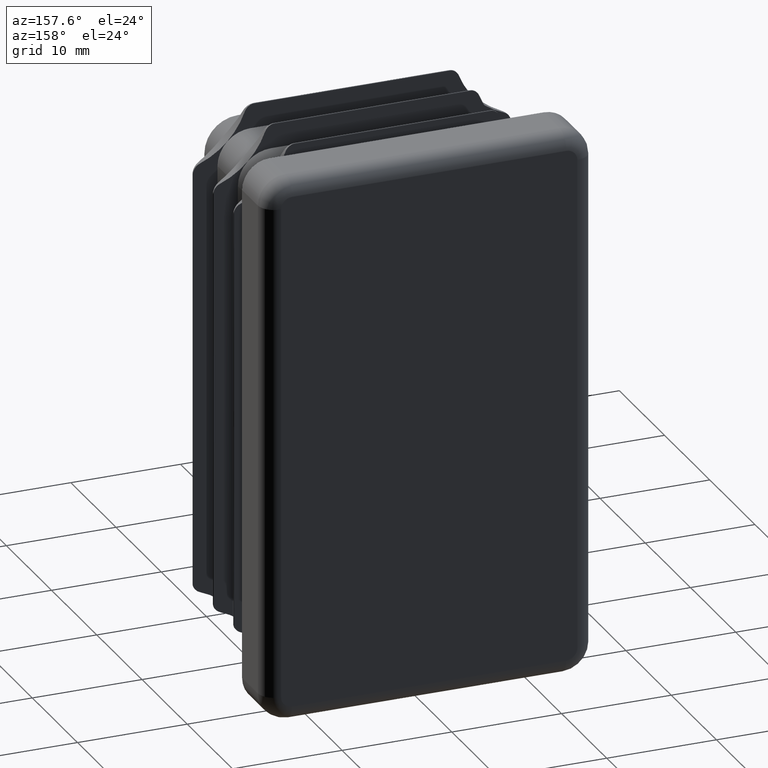
[diagram: clean part render]
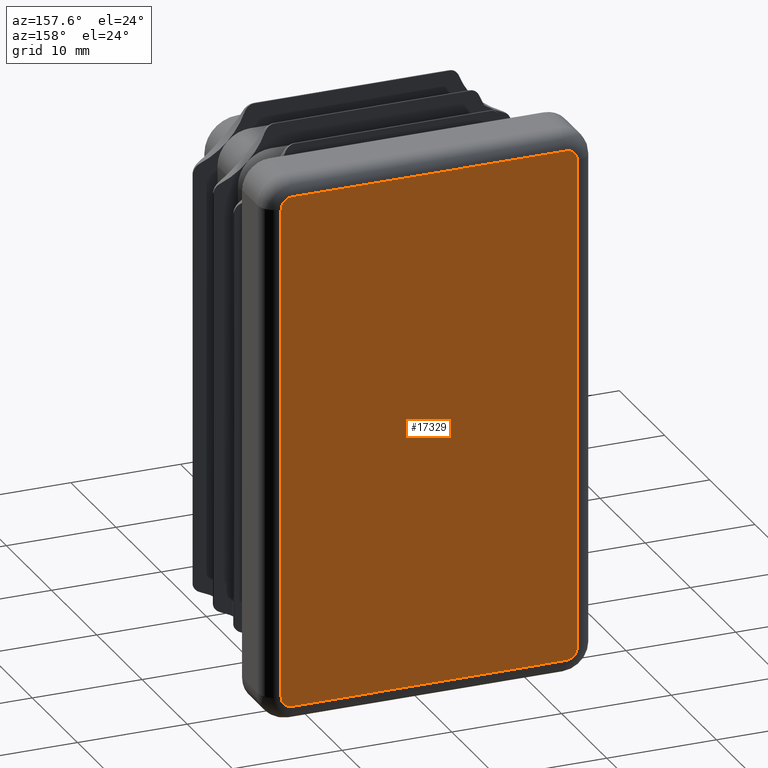
[diagram: same view with one face highlighted and labeled with its STEP entity id]
A machine part, auxiliary view. The second image highlights one B-rep face of the part: STEP entity #17329.
In plain terms, the highlighted planar face has unit normal (0, 1, 0).
Its self-contained STEP definition (entity closure, byte-faithful):
#63 = VERTEX_POINT ( 'NONE', #15449 ) ;
#498 = VERTEX_POINT ( 'NONE', #6552 ) ;
#795 = AXIS2_PLACEMENT_3D ( 'NONE', #4868, #18777, #9548 ) ;
#868 = CARTESIAN_POINT ( 'NONE',  ( 12.49999999999999822, 5.000000000000000000, -23.50000000000000355 ) ) ;
#976 = AXIS2_PLACEMENT_3D ( 'NONE', #13393, #4179, #7309 ) ;
#1946 = AXIS2_PLACEMENT_3D ( 'NONE', #16580, #18252, #12031 ) ;
#1960 = DIRECTION ( 'NONE',  ( 0.000000000000000000, 1.000000000000000000, 0.000000000000000000 ) ) ;
#2048 = DIRECTION ( 'NONE',  ( 0.000000000000000000, 0.000000000000000000, 1.000000000000000000 ) ) ;
#2829 = CIRCLE ( 'NONE', #12670, 1.000000000000000888 ) ;
#2890 = LINE ( 'NONE', #14258, #12329 ) ;
#3400 = CARTESIAN_POINT ( 'NONE',  ( 12.49999999999999822, 5.000000000000000000, -22.50000000000000355 ) ) ;
#3445 = PLANE ( 'NONE',  #6044 ) ;
#3987 = VECTOR ( 'NONE', #6668, 1000.000000000000000 ) ;
#4179 = DIRECTION ( 'NONE',  ( 0.000000000000000000, 1.000000000000000000, 0.000000000000000000 ) ) ;
#4342 = VERTEX_POINT ( 'NONE', #17839 ) ;
#4503 = VERTEX_POINT ( 'NONE', #17084 ) ;
#4695 = EDGE_CURVE ( 'NONE', #498, #63, #8121, .T. ) ;
#4868 = CARTESIAN_POINT ( 'NONE',  ( 12.50000000000000533, 5.000000000000000000, 22.50000000000000000 ) ) ;
#5216 = CIRCLE ( 'NONE', #1946, 1.000000000000000888 ) ;
#6044 = AXIS2_PLACEMENT_3D ( 'NONE', #15983, #1960, #17513 ) ;
#6552 = CARTESIAN_POINT ( 'NONE',  ( 13.50000000000000888, 5.000000000000000000, 22.50000000000000000 ) ) ;
#6668 = DIRECTION ( 'NONE',  ( -1.040834085586084257E-16, 0.000000000000000000, -1.000000000000000000 ) ) ;
#7235 = ORIENTED_EDGE ( 'NONE', *, *, #12396, .T. ) ;
#7309 = DIRECTION ( 'NONE',  ( 0.000000000000000000, 0.000000000000000000, 1.000000000000000000 ) ) ;
#7334 = ORIENTED_EDGE ( 'NONE', *, *, #10008, .T. ) ;
#7421 = DIRECTION ( 'NONE',  ( -1.000000000000000000, 0.000000000000000000, 0.000000000000000000 ) ) ;
#7503 = EDGE_LOOP ( 'NONE', ( #19153, #10498, #11410, #7334, #13663, #18885, #19144, #7235 ) ) ;
#7736 = VERTEX_POINT ( 'NONE', #10553 ) ;
#8099 = CARTESIAN_POINT ( 'NONE',  ( 13.50000000000000355, 5.000000000000000000, -22.50000000000000355 ) ) ;
#8121 = LINE ( 'NONE', #8099, #3987 ) ;
#9548 = DIRECTION ( 'NONE',  ( 0.000000000000000000, 0.000000000000000000, 1.000000000000000000 ) ) ;
#10008 = EDGE_CURVE ( 'NONE', #63, #13852, #2829, .T. ) ;
#10411 = VERTEX_POINT ( 'NONE', #12792 ) ;
#10498 = ORIENTED_EDGE ( 'NONE', *, *, #10845, .T. ) ;
#10553 = CARTESIAN_POINT ( 'NONE',  ( -13.49999999999999289, 5.000000000000000000, 22.50000000000000355 ) ) ;
#10845 = EDGE_CURVE ( 'NONE', #4503, #498, #13982, .T. ) ;
#11410 = ORIENTED_EDGE ( 'NONE', *, *, #4695, .T. ) ;
#11416 = CARTESIAN_POINT ( 'NONE',  ( -13.49999999999999822, 5.000000000000000000, -22.50000000000000355 ) ) ;
#12031 = DIRECTION ( 'NONE',  ( 0.000000000000000000, 0.000000000000000000, 1.000000000000000000 ) ) ;
#12295 = DIRECTION ( 'NONE',  ( 1.040834085586084257E-16, -0.000000000000000000, 1.000000000000000000 ) ) ;
#12329 = VECTOR ( 'NONE', #13997, 1000.000000000000000 ) ;
#12396 = EDGE_CURVE ( 'NONE', #7736, #10411, #5216, .T. ) ;
#12457 = EDGE_CURVE ( 'NONE', #16820, #7736, #19165, .T. ) ;
#12670 = AXIS2_PLACEMENT_3D ( 'NONE', #3400, #14257, #2048 ) ;
#12792 = CARTESIAN_POINT ( 'NONE',  ( -12.49999999999999289, 5.000000000000000000, 23.50000000000000355 ) ) ;
#13393 = CARTESIAN_POINT ( 'NONE',  ( -12.49999999999999645, 5.000000000000000000, -22.50000000000000355 ) ) ;
#13663 = ORIENTED_EDGE ( 'NONE', *, *, #16868, .T. ) ;
#13852 = VERTEX_POINT ( 'NONE', #868 ) ;
#13982 = CIRCLE ( 'NONE', #795, 1.000000000000000888 ) ;
#13997 = DIRECTION ( 'NONE',  ( 1.000000000000000000, -0.000000000000000000, 0.000000000000000000 ) ) ;
#14257 = DIRECTION ( 'NONE',  ( 0.000000000000000000, 1.000000000000000000, 0.000000000000000000 ) ) ;
#14258 = CARTESIAN_POINT ( 'NONE',  ( 12.50000000000000355, 5.000000000000000000, 23.50000000000000000 ) ) ;
#14594 = VECTOR ( 'NONE', #12295, 1000.000000000000000 ) ;
#15346 = EDGE_CURVE ( 'NONE', #10411, #4503, #2890, .T. ) ;
#15363 = CARTESIAN_POINT ( 'NONE',  ( -13.49999999999999289, 5.000000000000000000, 22.50000000000000000 ) ) ;
#15449 = CARTESIAN_POINT ( 'NONE',  ( 13.50000000000000355, 5.000000000000000000, -22.50000000000000355 ) ) ;
#15484 = LINE ( 'NONE', #18096, #17617 ) ;
#15983 = CARTESIAN_POINT ( 'NONE',  ( 0.000000000000000000, 5.000000000000000000, 0.000000000000000000 ) ) ;
#16503 = EDGE_CURVE ( 'NONE', #4342, #16820, #18597, .T. ) ;
#16580 = CARTESIAN_POINT ( 'NONE',  ( -12.49999999999999289, 5.000000000000000000, 22.50000000000000355 ) ) ;
#16820 = VERTEX_POINT ( 'NONE', #11416 ) ;
#16868 = EDGE_CURVE ( 'NONE', #13852, #4342, #15484, .T. ) ;
#17084 = CARTESIAN_POINT ( 'NONE',  ( 12.50000000000000533, 5.000000000000000000, 23.50000000000000000 ) ) ;
#17329 = ADVANCED_FACE ( 'NONE', ( #20017 ), #3445, .T. ) ;
#17513 = DIRECTION ( 'NONE',  ( 0.000000000000000000, -0.000000000000000000, 1.000000000000000000 ) ) ;
#17617 = VECTOR ( 'NONE', #7421, 1000.000000000000000 ) ;
#17839 = CARTESIAN_POINT ( 'NONE',  ( -12.49999999999999645, 5.000000000000000000, -23.50000000000000000 ) ) ;
#18096 = CARTESIAN_POINT ( 'NONE',  ( -12.49999999999999645, 5.000000000000000000, -23.50000000000000000 ) ) ;
#18252 = DIRECTION ( 'NONE',  ( 0.000000000000000000, 1.000000000000000000, 0.000000000000000000 ) ) ;
#18597 = CIRCLE ( 'NONE', #976, 1.000000000000000888 ) ;
#18777 = DIRECTION ( 'NONE',  ( 0.000000000000000000, 1.000000000000000000, 0.000000000000000000 ) ) ;
#18885 = ORIENTED_EDGE ( 'NONE', *, *, #16503, .T. ) ;
#19144 = ORIENTED_EDGE ( 'NONE', *, *, #12457, .T. ) ;
#19153 = ORIENTED_EDGE ( 'NONE', *, *, #15346, .T. ) ;
#19165 = LINE ( 'NONE', #15363, #14594 ) ;
#20017 = FACE_OUTER_BOUND ( 'NONE', #7503, .T. ) ;